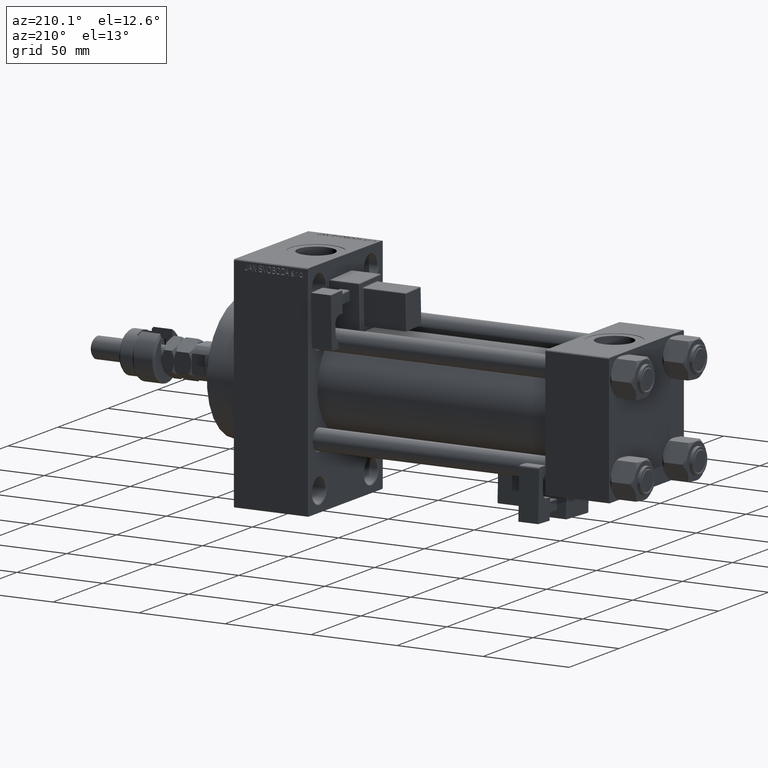
[diagram: clean part render]
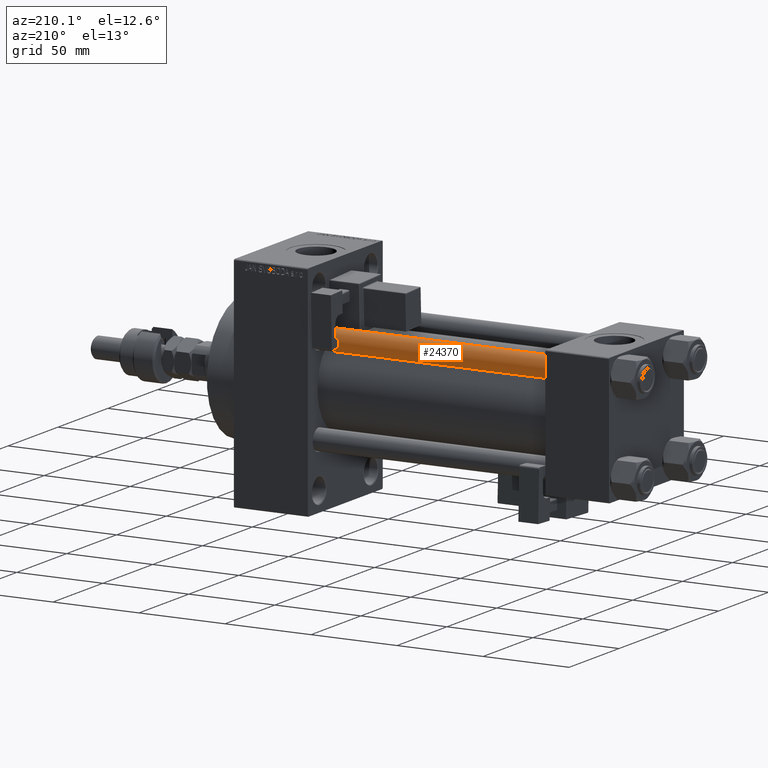
[diagram: same view with one face highlighted and labeled with its STEP entity id]
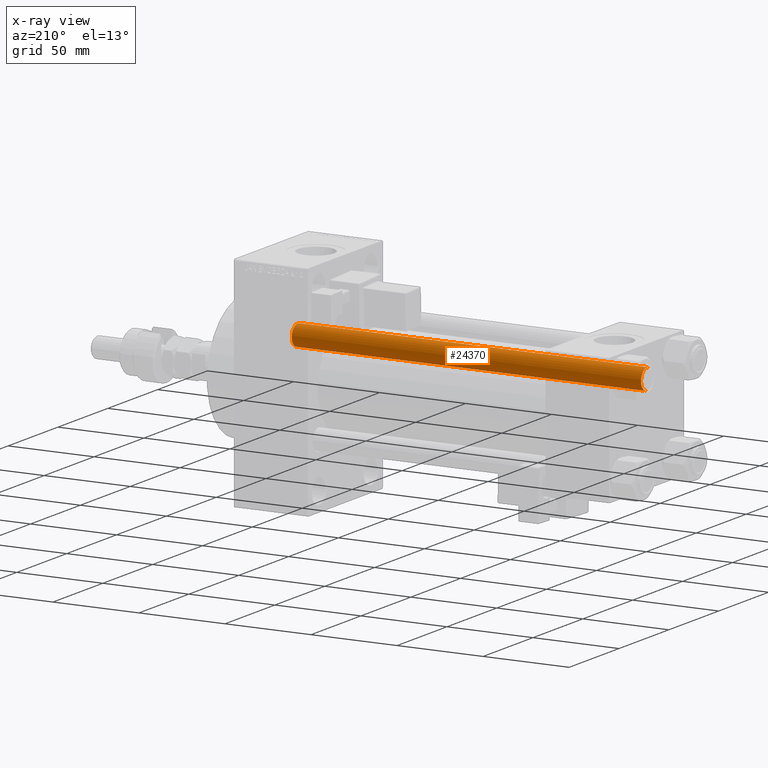
[diagram: x-ray of the same camera — body ghosted, the highlighted face saturated]
A machine part, auxiliary view. The second image highlights one B-rep face of the part: STEP entity #24370.
The next image is the same camera in x-ray: the body ghosted, the highlighted face saturated — about 0% of this face is hidden behind the body in this view.
In plain terms, the highlighted cylindrical surface (edge-blend (fillet) strip) has radius 6 mm, axis along (-1, -0, 0).
Its self-contained STEP definition (entity closure, byte-faithful):
#225 = LINE ( 'NONE', #8160, #10737 ) ;
#762 = CARTESIAN_POINT ( 'NONE',  ( -6.000000000000000888, 0.000000000000000000, 203.5000000000000000 ) ) ;
#983 = ORIENTED_EDGE ( 'NONE', *, *, #29322, .F. ) ;
#1350 = AXIS2_PLACEMENT_3D ( 'NONE', #14256, #6292, #6820 ) ;
#1811 = CARTESIAN_POINT ( 'NONE',  ( 0.000000000000000000, 0.000000000000000000, 0.5000000000000281997 ) ) ;
#2715 = CARTESIAN_POINT ( 'NONE',  ( 0.000000000000000000, 0.000000000000000000, 203.5000000000000000 ) ) ;
#4856 = CARTESIAN_POINT ( 'NONE',  ( -6.000000000000000888, 0.000000000000000000, 0.5000000000000281997 ) ) ;
#5661 = EDGE_CURVE ( 'NONE', #35462, #12142, #38145, .T. ) ;
#6165 = DIRECTION ( 'NONE',  ( 1.000000000000000000, 0.000000000000000000, 0.000000000000000000 ) ) ;
#6292 = DIRECTION ( 'NONE',  ( -0.000000000000000000, -0.000000000000000000, -1.000000000000000000 ) ) ;
#6820 = DIRECTION ( 'NONE',  ( -1.000000000000000000, 0.000000000000000000, 0.000000000000000000 ) ) ;
#8160 = CARTESIAN_POINT ( 'NONE',  ( -6.000000000000000888, 0.000000000000000000, 204.0000000000000000 ) ) ;
#10568 = DIRECTION ( 'NONE',  ( -0.000000000000000000, -0.000000000000000000, 1.000000000000000000 ) ) ;
#10737 = VECTOR ( 'NONE', #40552, 1000.000000000000000 ) ;
#12142 = VERTEX_POINT ( 'NONE', #4856 ) ;
#14256 = CARTESIAN_POINT ( 'NONE',  ( 0.000000000000000000, 0.000000000000000000, 204.0000000000000000 ) ) ;
#16142 = CIRCLE ( 'NONE', #17006, 6.000000000000000888 ) ;
#16923 = AXIS2_PLACEMENT_3D ( 'NONE', #1811, #10568, #17983 ) ;
#17006 = AXIS2_PLACEMENT_3D ( 'NONE', #2715, #18885, #6165 ) ;
#17983 = DIRECTION ( 'NONE',  ( 1.000000000000000000, 0.000000000000000000, 0.000000000000000000 ) ) ;
#18669 = DIRECTION ( 'NONE',  ( -0.000000000000000000, -0.000000000000000000, -1.000000000000000000 ) ) ;
#18749 = CYLINDRICAL_SURFACE ( 'NONE', #1350, 6.000000000000000888 ) ;
#18885 = DIRECTION ( 'NONE',  ( 0.000000000000000000, 0.000000000000000000, -1.000000000000000000 ) ) ;
#19206 = LINE ( 'NONE', #27415, #27686 ) ;
#21620 = ORIENTED_EDGE ( 'NONE', *, *, #30668, .T. ) ;
#24266 = VERTEX_POINT ( 'NONE', #762 ) ;
#24370 = ADVANCED_FACE ( 'NONE', ( #30165 ), #18749, .T. ) ;
#27415 = CARTESIAN_POINT ( 'NONE',  ( 6.000000000000000888, 7.347880794884120722E-16, 204.0000000000000000 ) ) ;
#27686 = VECTOR ( 'NONE', #18669, 1000.000000000000000 ) ;
#29322 = EDGE_CURVE ( 'NONE', #24266, #12142, #225, .T. ) ;
#30165 = FACE_OUTER_BOUND ( 'NONE', #48622, .T. ) ;
#30668 = EDGE_CURVE ( 'NONE', #34416, #35462, #19206, .T. ) ;
#34416 = VERTEX_POINT ( 'NONE', #50831 ) ;
#35462 = VERTEX_POINT ( 'NONE', #41468 ) ;
#37473 = EDGE_CURVE ( 'NONE', #24266, #34416, #16142, .T. ) ;
#38145 = CIRCLE ( 'NONE', #16923, 6.000000000000000888 ) ;
#38359 = ORIENTED_EDGE ( 'NONE', *, *, #5661, .T. ) ;
#40552 = DIRECTION ( 'NONE',  ( -0.000000000000000000, -0.000000000000000000, -1.000000000000000000 ) ) ;
#41468 = CARTESIAN_POINT ( 'NONE',  ( 6.000000000000000888, 7.347880794884120722E-16, 0.5000000000000281997 ) ) ;
#44234 = ORIENTED_EDGE ( 'NONE', *, *, #37473, .T. ) ;
#48622 = EDGE_LOOP ( 'NONE', ( #44234, #21620, #38359, #983 ) ) ;
#50831 = CARTESIAN_POINT ( 'NONE',  ( 6.000000000000000888, 7.347880794884120722E-16, 203.5000000000000000 ) ) ;